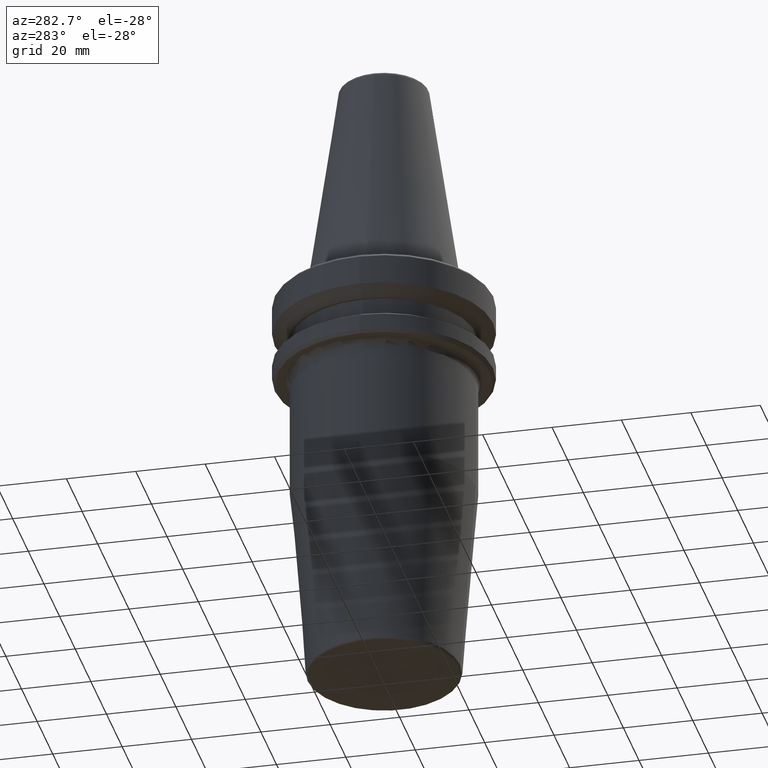
[diagram: clean part render]
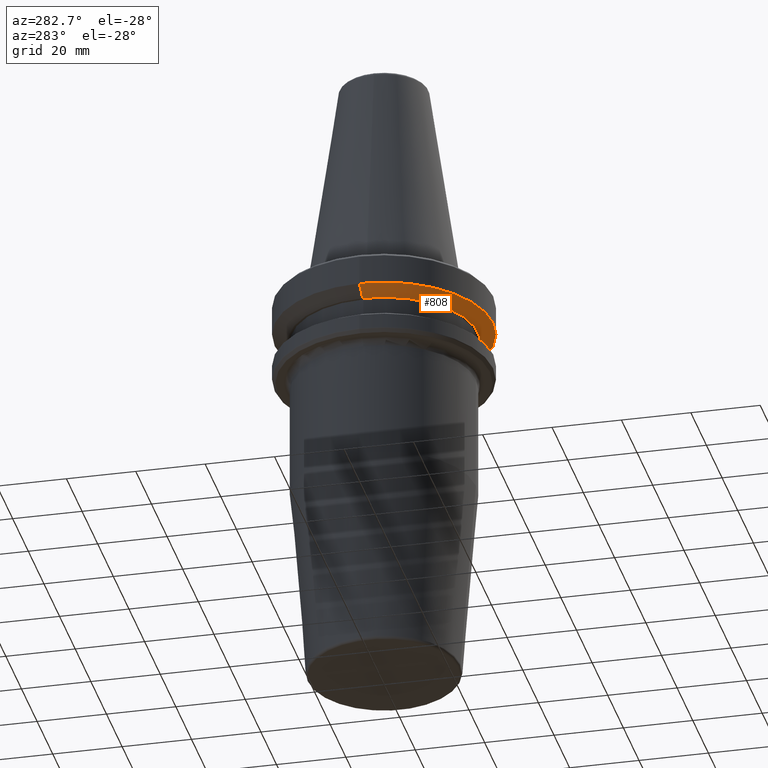
[diagram: same view with one face highlighted and labeled with its STEP entity id]
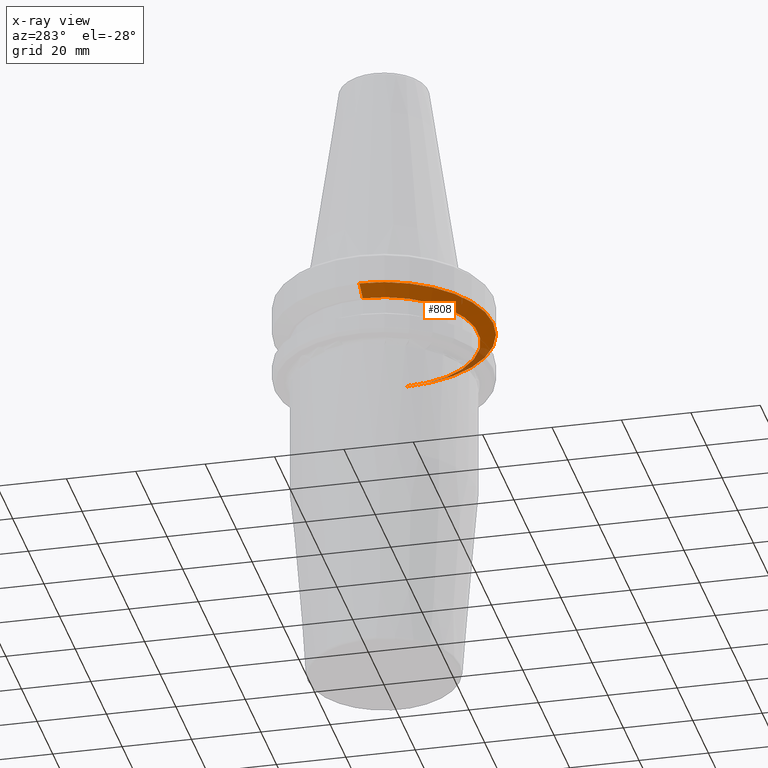
[diagram: x-ray of the same camera — body ghosted, the highlighted face saturated]
A machine part, auxiliary view. The second image highlights one B-rep face of the part: STEP entity #808.
The next image is the same camera in x-ray: the body ghosted, the highlighted face saturated — about 9% of this face is hidden behind the body in this view.
In plain terms, the highlighted conical surface has half-angle 60 deg.
Its self-contained STEP definition (entity closure, byte-faithful):
#50 = DIRECTION ( 'NONE',  ( 1.000000000000000000, 0.0000000000000000000, 0.0000000000000000000 ) ) ;
#74 = DIRECTION ( 'NONE',  ( -0.0000000000000000000, -0.0000000000000000000, 1.000000000000000000 ) ) ;
#86 = CARTESIAN_POINT ( 'NONE',  ( -31.50000000000000000, 3.857637417314162700E-015, -11.59985799368323700 ) ) ;
#175 = LINE ( 'NONE', #86, #717 ) ;
#180 = CARTESIAN_POINT ( 'NONE',  ( 31.50000000000000000, 0.0000000000000000000, -11.59985799368323700 ) ) ;
#197 = DIRECTION ( 'NONE',  ( -0.8660254037844393700, 1.060575238724907800E-016, 0.4999999999999985000 ) ) ;
#245 = CARTESIAN_POINT ( 'NONE',  ( 0.0000000000000000000, 0.0000000000000000000, -11.59985799368323700 ) ) ;
#387 = CARTESIAN_POINT ( 'NONE',  ( -27.16962701892216000, 3.592478546794604700E-015, -14.10000000000000100 ) ) ;
#391 = DIRECTION ( 'NONE',  ( 1.000000000000000000, 0.0000000000000000000, 0.0000000000000000000 ) ) ;
#414 = CIRCLE ( 'NONE', #769, 27.16962701892216000 ) ;
#415 = EDGE_LOOP ( 'NONE', ( #463, #904, #619, #1126 ) ) ;
#418 = VECTOR ( 'NONE', #1181, 1000.000000000000100 ) ;
#463 = ORIENTED_EDGE ( 'NONE', *, *, #1096, .F. ) ;
#488 = CIRCLE ( 'NONE', #608, 31.50000000000000000 ) ;
#498 = AXIS2_PLACEMENT_3D ( 'NONE', #245, #1234, #1134 ) ;
#578 = CARTESIAN_POINT ( 'NONE',  ( 27.16962701892216000, 0.0000000000000000000, -14.10000000000000100 ) ) ;
#608 = AXIS2_PLACEMENT_3D ( 'NONE', #979, #74, #391 ) ;
#619 = ORIENTED_EDGE ( 'NONE', *, *, #1114, .T. ) ;
#655 = LINE ( 'NONE', #1083, #418 ) ;
#658 = VERTEX_POINT ( 'NONE', #180 ) ;
#668 = DIRECTION ( 'NONE',  ( -0.0000000000000000000, -0.0000000000000000000, 1.000000000000000000 ) ) ;
#717 = VECTOR ( 'NONE', #197, 1000.000000000000100 ) ;
#769 = AXIS2_PLACEMENT_3D ( 'NONE', #1238, #668, #50 ) ;
#801 = VERTEX_POINT ( 'NONE', #578 ) ;
#808 = ADVANCED_FACE ( 'NONE', ( #1166 ), #902, .T. ) ;
#875 = EDGE_CURVE ( 'NONE', #1276, #801, #414, .T. ) ;
#902 = CONICAL_SURFACE ( 'NONE', #498, 31.50000000000000000, 1.047197551196599400 ) ;
#904 = ORIENTED_EDGE ( 'NONE', *, *, #875, .T. ) ;
#979 = CARTESIAN_POINT ( 'NONE',  ( 0.0000000000000000000, 0.0000000000000000000, -11.59985799368323700 ) ) ;
#1045 = EDGE_CURVE ( 'NONE', #1093, #658, #488, .T. ) ;
#1083 = CARTESIAN_POINT ( 'NONE',  ( 31.50000000000000000, 0.0000000000000000000, -11.59985799368323700 ) ) ;
#1093 = VERTEX_POINT ( 'NONE', #1175 ) ;
#1096 = EDGE_CURVE ( 'NONE', #1276, #1093, #175, .T. ) ;
#1114 = EDGE_CURVE ( 'NONE', #801, #658, #655, .T. ) ;
#1126 = ORIENTED_EDGE ( 'NONE', *, *, #1045, .F. ) ;
#1134 = DIRECTION ( 'NONE',  ( 1.000000000000000000, 0.0000000000000000000, 0.0000000000000000000 ) ) ;
#1166 = FACE_OUTER_BOUND ( 'NONE', #415, .T. ) ;
#1175 = CARTESIAN_POINT ( 'NONE',  ( -31.50000000000000000, 3.857637417314162700E-015, -11.59985799368323700 ) ) ;
#1181 = DIRECTION ( 'NONE',  ( 0.8660254037844393700, 0.0000000000000000000, 0.4999999999999985000 ) ) ;
#1234 = DIRECTION ( 'NONE',  ( -0.0000000000000000000, -0.0000000000000000000, 1.000000000000000000 ) ) ;
#1238 = CARTESIAN_POINT ( 'NONE',  ( 0.0000000000000000000, 0.0000000000000000000, -14.10000000000000100 ) ) ;
#1276 = VERTEX_POINT ( 'NONE', #387 ) ;